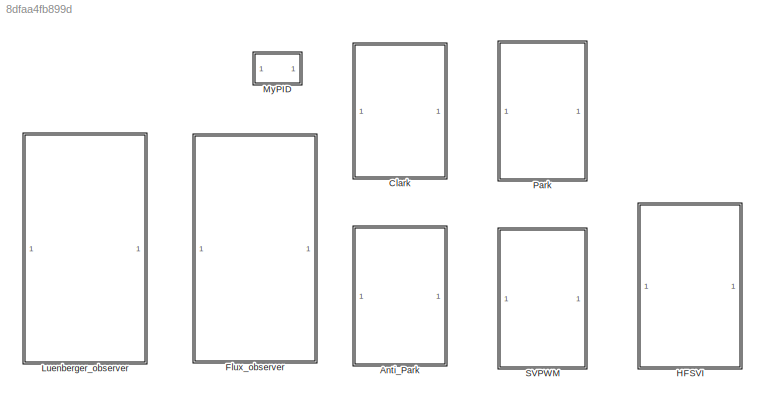
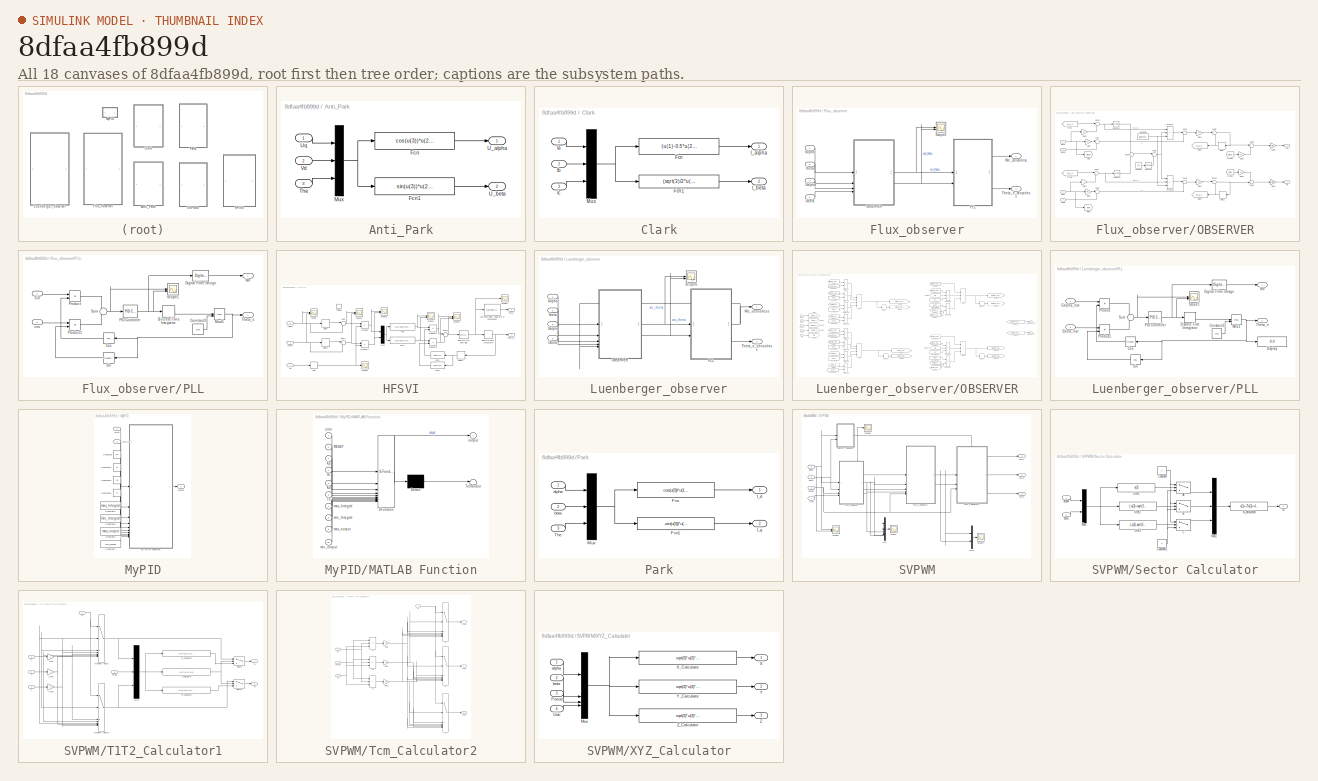
[diagram: thumbnail index - all 18 canvases of the model, root first then tree order]
MODEL slx_8dfaa4fb899d
KIND library
CONFIG AbsTol = auto
CONFIG EnableMultiTasking = off
CONFIG FixedStep = auto
CONFIG MaxStep = auto
CONFIG MinStep = auto
CONFIG RelTol = 1e-3
CONFIG SampleTimeConstraint = Unconstrained
CONFIG SolverName = VariableStepAuto
CONFIG StartTime = 0.0
CONFIG StopTime = 10.0
BLOCK [SubSystem] Anti_Park
BLOCK [Fcn] Anti_Park/Fcn
  Expr = cos(u(3))*u(2)-sin(u(3))*u(1)
BLOCK [Fcn] Anti_Park/Fcn1
  Expr = sin(u(3))*u(2)+cos(u(3))*u(1)
BLOCK [Mux] Anti_Park/Mux
  DisplayOption = bar
  Inputs = 3
BLOCK [Inport] Anti_Park/The
  Port = 3
BLOCK [Outport] Anti_Park/U_alpha
BLOCK [Outport] Anti_Park/U_beta
  Port = 2
BLOCK [Inport] Anti_Park/Uq
BLOCK [Inport] Anti_Park/Vd
  Port = 2
BLOCK [SubSystem] Clark
BLOCK [Fcn] Clark/Fcn
  Expr = (u(1)-0.5*u(2)-0.5*u(3))*2/3
BLOCK [Fcn] Clark/Fcn1
  Expr = (sqrt(3)/2*u(2)-sqrt(3)/2*u(3))*2/3
BLOCK [Outport] Clark/I_alpha
BLOCK [Outport] Clark/I_beta
  Port = 2
BLOCK [Inport] Clark/Ia
BLOCK [Inport] Clark/Ib
  Port = 2
BLOCK [Inport] Clark/Ic
  Port = 3
BLOCK [Mux] Clark/Mux
  DisplayOption = bar
  Inputs = 3
BLOCK [SubSystem] Flux_observer
  TreatAsAtomicUnit = on
BLOCK [Inport] Flux_observer/Ialpha
BLOCK [Inport] Flux_observer/Ibeta
  Port = 2
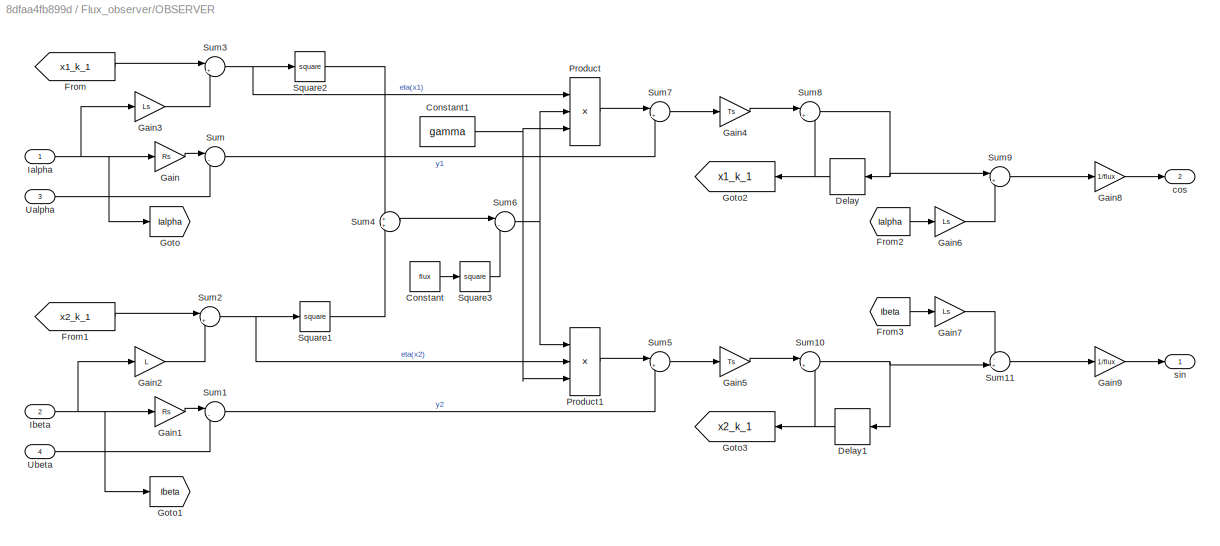
BLOCK [SubSystem] Flux_observer/OBSERVER
BLOCK [Constant] Flux_observer/OBSERVER/Constant
  Value = flux
BLOCK [Constant] Flux_observer/OBSERVER/Constant1
  Value = gamma
BLOCK [Delay] Flux_observer/OBSERVER/Delay
  DelayLength = 1
  InputPortMap = u0
  InputProcessing = Columns as channels (frame based)
BLOCK [Delay] Flux_observer/OBSERVER/Delay1
  DelayLength = 1
  InputPortMap = u0
  InputProcessing = Columns as channels (frame based)
BLOCK [From] Flux_observer/OBSERVER/From
  GotoTag = x1_k_1
BLOCK [From] Flux_observer/OBSERVER/From1
  GotoTag = x2_k_1
BLOCK [From] Flux_observer/OBSERVER/From2
  GotoTag = Ialpha
BLOCK [From] Flux_observer/OBSERVER/From3
  GotoTag = Ibeta
BLOCK [Gain] Flux_observer/OBSERVER/Gain
  Gain = Rs
BLOCK [Gain] Flux_observer/OBSERVER/Gain1
  Gain = Rs
BLOCK [Gain] Flux_observer/OBSERVER/Gain2
  Gain = L
BLOCK [Gain] Flux_observer/OBSERVER/Gain3
  Gain = Ls
BLOCK [Gain] Flux_observer/OBSERVER/Gain4
  Gain = Ts
BLOCK [Gain] Flux_observer/OBSERVER/Gain5
  Gain = Ts
BLOCK [Gain] Flux_observer/OBSERVER/Gain6
  Gain = Ls
BLOCK [Gain] Flux_observer/OBSERVER/Gain7
  Gain = Ls
BLOCK [Gain] Flux_observer/OBSERVER/Gain8
  Gain = 1/flux
BLOCK [Gain] Flux_observer/OBSERVER/Gain9
  Gain = 1/flux
BLOCK [Goto] Flux_observer/OBSERVER/Goto
  GotoTag = Ialpha
BLOCK [Goto] Flux_observer/OBSERVER/Goto1
  GotoTag = Ibeta
BLOCK [Goto] Flux_observer/OBSERVER/Goto2
  GotoTag = x1_k_1
BLOCK [Goto] Flux_observer/OBSERVER/Goto3
  GotoTag = x2_k_1
BLOCK [Inport] Flux_observer/OBSERVER/Ialpha
BLOCK [Inport] Flux_observer/OBSERVER/Ibeta
  Port = 2
BLOCK [Product] Flux_observer/OBSERVER/Product
  Inputs = 3
BLOCK [Product] Flux_observer/OBSERVER/Product1
  Inputs = 3
BLOCK [Math] Flux_observer/OBSERVER/Square1
  Operator = square
BLOCK [Math] Flux_observer/OBSERVER/Square2
  Operator = square
BLOCK [Math] Flux_observer/OBSERVER/Square3
  Operator = square
BLOCK [Sum] Flux_observer/OBSERVER/Sum
  Inputs = |-+
BLOCK [Sum] Flux_observer/OBSERVER/Sum1
  Inputs = |-+
BLOCK [Sum] Flux_observer/OBSERVER/Sum10
  Inputs = |++
BLOCK [Sum] Flux_observer/OBSERVER/Sum11
  Inputs = -+|
BLOCK [Sum] Flux_observer/OBSERVER/Sum2
  Inputs = |+-
BLOCK [Sum] Flux_observer/OBSERVER/Sum3
  Inputs = |+-
BLOCK [Sum] Flux_observer/OBSERVER/Sum4
BLOCK [Sum] Flux_observer/OBSERVER/Sum5
  Inputs = |++
BLOCK [Sum] Flux_observer/OBSERVER/Sum6
  Inputs = |-+
BLOCK [Sum] Flux_observer/OBSERVER/Sum7
  Inputs = |++
BLOCK [Sum] Flux_observer/OBSERVER/Sum8
  Inputs = |++
BLOCK [Sum] Flux_observer/OBSERVER/Sum9
  Inputs = |+-
BLOCK [Inport] Flux_observer/OBSERVER/Ualpha
  Port = 3
BLOCK [Inport] Flux_observer/OBSERVER/Ubeta
  Port = 4
BLOCK [Outport] Flux_observer/OBSERVER/cos
  Port = 2
BLOCK [Outport] Flux_observer/OBSERVER/sin
BLOCK [SubSystem] Flux_observer/PLL
BLOCK [Constant] Flux_observer/PLL/Constant3
  Value = 2*pi
BLOCK [Trigonometry] Flux_observer/PLL/Cos
  ApproximationMethod = Lookup
  Operator = cos
BLOCK [Reference] Flux_observer/PLL/Digital Filter Design  REF=dspfdesign/Digital
Filter Design
  SourceBlock = dspfdesign/Digital\nFilter Design
  SourceType = Digital Filter Design
  UserDataPersistent = on
BLOCK [DiscreteIntegrator] Flux_observer/PLL/Discrete-Time Integrator
  ICPrevOutput = DiscIntNeverNeededParam
  ICPrevScaledInput = DiscIntNeverNeededParam
  InitialConditionSetting = Auto
  SampleTime = -1
BLOCK [Math] Flux_observer/PLL/Mod1
  Operator = mod
BLOCK [Reference] Flux_observer/PLL/PID Controller  REF=slpidlib/PID Controller
  SourceBlock = slpidlib/PID Controller
  SourceType = PID 1dof
BLOCK [Product] Flux_observer/PLL/Product
BLOCK [Product] Flux_observer/PLL/Product1
BLOCK [Scope] Flux_observer/PLL/Scope1
  Floating = off
  NumInputPorts = 2
  ScopeSpecificationString = Simulink.scopes.TimeScopeBlockCfg('CurrentConfiguration', extmgr.ConfigurationSet(extmgr.Configuration('Core','General UI',true),extmgr.Configuration('Core','Source UI',true),extmgr.Configuration('Sources','WiredSimulink',true,'DataLoggingVariableName','ScopeData16'),extmgr.Configuration('Visuals','Time Domain',true,'SerializedDisplays',{struct('MinYLimReal','-0.12371','MaxYLimReal','0.7221','YLab...<+2292ch>
BLOCK [Trigonometry] Flux_observer/PLL/Sin
  ApproximationMethod = Lookup
BLOCK [Sum] Flux_observer/PLL/Sum
  Inputs = +-
BLOCK [Outport] Flux_observer/PLL/Theta_e
  Port = 2
BLOCK [Outport] Flux_observer/PLL/We
BLOCK [Inport] Flux_observer/PLL/cos
  Port = 2
BLOCK [Inport] Flux_observer/PLL/sin
BLOCK [Scope] Flux_observer/Scope6
  Floating = off
  NumInputPorts = 2
  ScopeSpecificationString = Simulink.scopes.TimeScopeBlockCfg('CurrentConfiguration', extmgr.ConfigurationSet(extmgr.Configuration('Core','General UI',true),extmgr.Configuration('Core','Source UI',true),extmgr.Configuration('Sources','WiredSimulink',true,'DataLoggingVariableName','ScopeData12'),extmgr.Configuration('Visuals','Time Domain',true,'SerializedDisplays',{struct('MinYLimReal','-1.19042','MaxYLimReal','1.08525','YLa...<+1566ch>
BLOCK [Outport] Flux_observer/Theta_e_sensorless
  Port = 2
BLOCK [Inport] Flux_observer/Ualpha
  Port = 3
BLOCK [Inport] Flux_observer/Ubeta
  Port = 4
BLOCK [Outport] Flux_observer/We_sensorless
BLOCK [SubSystem] HFSVI
  TreatAsAtomicUnit = on
BLOCK [Delay] HFSVI/Delay
  DelayLength = 1
  InitialCondition = 0
  InputPortMap = u0
BLOCK [Delay] HFSVI/Delay1
  DelayLength = 1
  InitialCondition = 0
  InputPortMap = u0
BLOCK [Delay] HFSVI/Delay2
  DelayLength = 1
  InitialCondition = 0
  InputPortMap = u0
  NameLocation = top
BLOCK [Reference] HFSVI/Discrete PID Controller  REF=slpidlib/PID Controller
  SourceBlock = slpidlib/PID Controller
  SourceType = PID 1dof
BLOCK [DiscreteIntegrator] HFSVI/Discrete-Time Integrator
  ICPrevOutput = DiscIntNeverNeededParam
  ICPrevScaledInput = DiscIntNeverNeededParam
  InitialConditionSetting = Auto
  SampleTime = -1
BLOCK [Fcn] HFSVI/Fcn
  Expr = u(1)/sqrt(u(1)^2+u(2)^2)
BLOCK [Fcn] HFSVI/Fcn1
  Expr = u(2)/sqrt(u(1)^2+u(2)^2)
BLOCK [Fcn] HFSVI/Fcn2
  Expr = sin(u(1))
  NameLocation = top
BLOCK [Fcn] HFSVI/Fcn3
  Expr = cos(u(1))
  NameLocation = top
BLOCK [Inport] HFSVI/Ialpha
  Port = 2
BLOCK [Inport] HFSVI/Ibeta
  Port = 3
BLOCK [Reference] HFSVI/Low-Pass Filter (Discrete or Continuous)  REF=eeGeneralControl/Low-Pass Filter
(Discrete or Continuous)
  SourceBlock = eeGeneralControl/Low-Pass Filter\n(Discrete or Continuous)
  SourceType = Low-Pass Filter (Discrete or Continuous)
BLOCK [Mux] HFSVI/Mux
  DisplayOption = bar
  Inputs = 2
BLOCK [Product] HFSVI/Product
BLOCK [Product] HFSVI/Product1
BLOCK [Product] HFSVI/Product2
BLOCK [Product] HFSVI/Product3
BLOCK [Scope] HFSVI/Scope
  Floating = off
  NumInputPorts = 2
  ScopeSpecificationString = Simulink.scopes.TimeScopeBlockCfg('CurrentConfiguration', extmgr.ConfigurationSet(extmgr.Configuration('Core','General UI',true),extmgr.Configuration('Core','Source UI',true),extmgr.Configuration('Sources','WiredSimulink',true,'DataLoggingVariableName','ScopeData1'),extmgr.Configuration('Visuals','Time Domain',true,'SerializedDisplays',{struct('MinYLimReal','-0.31124','MaxYLimReal','0.30332','YLab...<+1776ch>
BLOCK [Scope] HFSVI/Scope1
  Floating = off
  NumInputPorts = 2
  ScopeSpecificationString = Simulink.scopes.TimeScopeBlockCfg('CurrentConfiguration', extmgr.ConfigurationSet(extmgr.Configuration('Core','General UI',true),extmgr.Configuration('Core','Source UI',true),extmgr.Configuration('Sources','WiredSimulink',true,'DataLoggingVariableName','ScopeData3'),extmgr.Configuration('Visuals','Time Domain',true,'SerializedDisplays',{struct('MinYLimReal','-0.88992','MaxYLimReal','0.99374','YLab...<+1465ch>
BLOCK [Scope] HFSVI/Scope2
  Floating = off
  NumInputPorts = 2
  ScopeSpecificationString = Simulink.scopes.TimeScopeBlockCfg('CurrentConfiguration', extmgr.ConfigurationSet(extmgr.Configuration('Core','General UI',true),extmgr.Configuration('Core','Source UI',true),extmgr.Configuration('Sources','WiredSimulink',true,'DataLoggingVariableName','ScopeData4'),extmgr.Configuration('Visuals','Time Domain',true,'SerializedDisplays',{struct('MinYLimReal','-0.99404','MaxYLimReal','0.8926','YLabe...<+1788ch>
BLOCK [Scope] HFSVI/Scope3
  Floating = off
  NumInputPorts = 1
  ScopeSpecificationString = Simulink.scopes.TimeScopeBlockCfg('CurrentConfiguration', extmgr.ConfigurationSet(extmgr.Configuration('Core','General UI',true),extmgr.Configuration('Core','Source UI',true),extmgr.Configuration('Sources','WiredSimulink',true,'DataLoggingVariableName','ScopeData5'),extmgr.Configuration('Visuals','Time Domain',true,'SerializedDisplays',{struct('MinYLimReal','-1.25','MaxYLimReal','1.25','YLabelReal...<+1432ch>
BLOCK [Scope] HFSVI/Scope4
  Floating = off
  NumInputPorts = 2
  ScopeSpecificationString = Simulink.scopes.TimeScopeBlockCfg('CurrentConfiguration', extmgr.ConfigurationSet(extmgr.Configuration('Core','General UI',true),extmgr.Configuration('Core','Source UI',true),extmgr.Configuration('Sources','WiredSimulink',true,'DataLoggingVariableName','ScopeData6'),extmgr.Configuration('Visuals','Time Domain',true,'SerializedDisplays',{struct('MinYLimReal','-1.25','MaxYLimReal','1.25','YLabelReal...<+1447ch>
BLOCK [Scope] HFSVI/Scope5
  Floating = off
  NumInputPorts = 1
  ScopeSpecificationString = Simulink.scopes.TimeScopeBlockCfg('CurrentConfiguration', extmgr.ConfigurationSet(extmgr.Configuration('Core','General UI',true),extmgr.Configuration('Core','Source UI',true),extmgr.Configuration('Sources','WiredSimulink',true,'DataLoggingVariableName','ScopeData1'),extmgr.Configuration('Visuals','Time Domain',true,'SerializedDisplays',{struct('MinYLimReal','-248.78679','MaxYLimReal','623.09214','...<+1448ch>
BLOCK [Scope] HFSVI/Scope6
  Floating = off
  NumInputPorts = 3
  ScopeSpecificationString = Simulink.scopes.TimeScopeBlockCfg('CurrentConfiguration', extmgr.ConfigurationSet(extmgr.Configuration('Core','General UI',true),extmgr.Configuration('Core','Source UI',true),extmgr.Configuration('Sources','WiredSimulink',true,'DataLoggingVariableName','ScopeData2'),extmgr.Configuration('Visuals','Time Domain',true,'SerializedDisplays',{struct('MinYLimReal','-1.12483','MaxYLimReal','1.12483','YLab...<+1481ch>
BLOCK [Signum] HFSVI/Sign
BLOCK [Sum] HFSVI/Sum
  Inputs = |-+
BLOCK [Sum] HFSVI/Sum1
  Inputs = |-+
BLOCK [Sum] HFSVI/Sum2
  Inputs = +-
BLOCK [Outport] HFSVI/Theta_e
BLOCK [TriggerPort] HFSVI/Trigger
  StatesWhenEnabling = held
  TriggerType = either
  VariantControl = (inherit)
BLOCK [Inport] HFSVI/Uh
BLOCK [Outport] HFSVI/We_e
  Port = 2
BLOCK [SubSystem] Luenberger_observer
  TreatAsAtomicUnit = on
BLOCK [Inport] Luenberger_observer/Ialpha
BLOCK [Inport] Luenberger_observer/Ibeta
  Port = 2
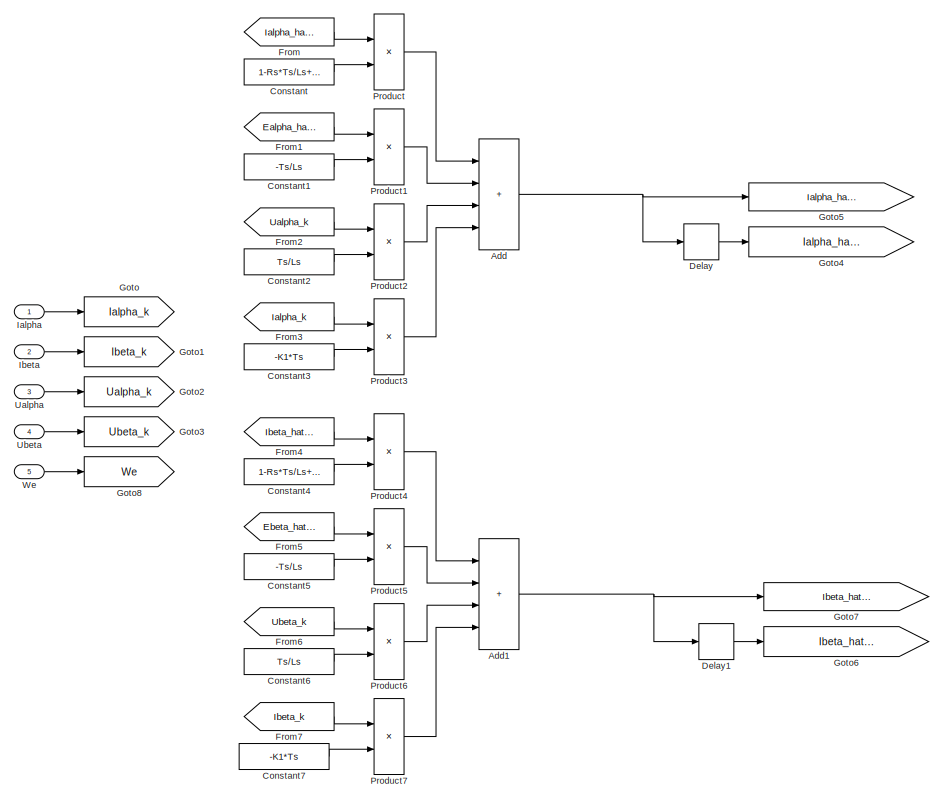
[diagram: Luenberger_observer/OBSERVER - part 1/2, left side, full height]
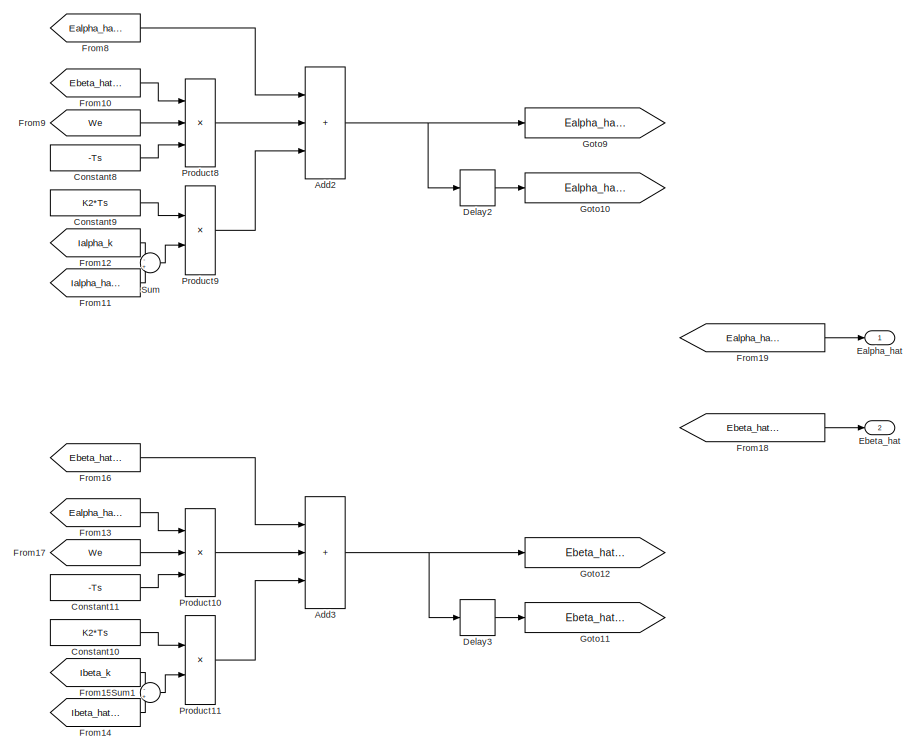
[diagram: Luenberger_observer/OBSERVER - part 2/2, right side, full height]
BLOCK [SubSystem] Luenberger_observer/OBSERVER
BLOCK [Sum] Luenberger_observer/OBSERVER/Add
  IconShape = rectangular
  Inputs = ++++
BLOCK [Sum] Luenberger_observer/OBSERVER/Add1
  IconShape = rectangular
  Inputs = ++++
BLOCK [Sum] Luenberger_observer/OBSERVER/Add2
  IconShape = rectangular
  Inputs = +++
BLOCK [Sum] Luenberger_observer/OBSERVER/Add3
  IconShape = rectangular
  Inputs = +++
BLOCK [Constant] Luenberger_observer/OBSERVER/Constant
  Value = 1-Rs*Ts/Ls+K1*Ts
BLOCK [Constant] Luenberger_observer/OBSERVER/Constant1
  Value = -Ts/Ls
BLOCK [Constant] Luenberger_observer/OBSERVER/Constant10
  Value = K2*Ts
BLOCK [Constant] Luenberger_observer/OBSERVER/Constant11
  Value = -Ts
BLOCK [Constant] Luenberger_observer/OBSERVER/Constant2
  Value = Ts/Ls
BLOCK [Constant] Luenberger_observer/OBSERVER/Constant3
  Value = -K1*Ts
BLOCK [Constant] Luenberger_observer/OBSERVER/Constant4
  Value = 1-Rs*Ts/Ls+K1*Ts
BLOCK [Constant] Luenberger_observer/OBSERVER/Constant5
  Value = -Ts/Ls
BLOCK [Constant] Luenberger_observer/OBSERVER/Constant6
  Value = Ts/Ls
BLOCK [Constant] Luenberger_observer/OBSERVER/Constant7
  Value = -K1*Ts
BLOCK [Constant] Luenberger_observer/OBSERVER/Constant8
  Value = -Ts
BLOCK [Constant] Luenberger_observer/OBSERVER/Constant9
  Value = K2*Ts
BLOCK [Delay] Luenberger_observer/OBSERVER/Delay
  DelayLength = 1
  InputPortMap = u0
  InputProcessing = Columns as channels (frame based)
BLOCK [Delay] Luenberger_observer/OBSERVER/Delay1
  DelayLength = 1
  InputPortMap = u0
  InputProcessing = Columns as channels (frame based)
BLOCK [Delay] Luenberger_observer/OBSERVER/Delay2
  DelayLength = 1
  InputPortMap = u0
  InputProcessing = Columns as channels (frame based)
BLOCK [Delay] Luenberger_observer/OBSERVER/Delay3
  DelayLength = 1
  InputPortMap = u0
  InputProcessing = Columns as channels (frame based)
BLOCK [Outport] Luenberger_observer/OBSERVER/Ealpha_hat
BLOCK [Outport] Luenberger_observer/OBSERVER/Ebeta_hat
  Port = 2
BLOCK [From] Luenberger_observer/OBSERVER/From
  GotoTag = Ialpha_hat_k
BLOCK [From] Luenberger_observer/OBSERVER/From1
  GotoTag = Ealpha_hat_k
BLOCK [From] Luenberger_observer/OBSERVER/From10
  GotoTag = Ebeta_hat_k
BLOCK [From] Luenberger_observer/OBSERVER/From11
  GotoTag = Ialpha_hat_k
BLOCK [From] Luenberger_observer/OBSERVER/From12
  GotoTag = Ialpha_k
BLOCK [From] Luenberger_observer/OBSERVER/From13
  GotoTag = Ealpha_hat_k
BLOCK [From] Luenberger_observer/OBSERVER/From14
  GotoTag = Ibeta_hat_k
BLOCK [From] Luenberger_observer/OBSERVER/From15
  GotoTag = Ibeta_k
BLOCK [From] Luenberger_observer/OBSERVER/From16
  GotoTag = Ebeta_hat_k
BLOCK [From] Luenberger_observer/OBSERVER/From17
  GotoTag = We
BLOCK [From] Luenberger_observer/OBSERVER/From18
  GotoTag = Ebeta_hat_k
BLOCK [From] Luenberger_observer/OBSERVER/From19
  GotoTag = Ealpha_hat_k
BLOCK [From] Luenberger_observer/OBSERVER/From2
  GotoTag = Ualpha_k
BLOCK [From] Luenberger_observer/OBSERVER/From3
  GotoTag = Ialpha_k
BLOCK [From] Luenberger_observer/OBSERVER/From4
  GotoTag = Ibeta_hat_k
BLOCK [From] Luenberger_observer/OBSERVER/From5
  GotoTag = Ebeta_hat_k
BLOCK [From] Luenberger_observer/OBSERVER/From6
  GotoTag = Ubeta_k
BLOCK [From] Luenberger_observer/OBSERVER/From7
  GotoTag = Ibeta_k
BLOCK [From] Luenberger_observer/OBSERVER/From8
  GotoTag = Ealpha_hat_k
BLOCK [From] Luenberger_observer/OBSERVER/From9
  GotoTag = We
BLOCK [Goto] Luenberger_observer/OBSERVER/Goto
  GotoTag = Ialpha_k
BLOCK [Goto] Luenberger_observer/OBSERVER/Goto1
  GotoTag = Ibeta_k
BLOCK [Goto] Luenberger_observer/OBSERVER/Goto10
  GotoTag = Ealpha_hat_k
BLOCK [Goto] Luenberger_observer/OBSERVER/Goto11
  GotoTag = Ebeta_hat_k
BLOCK [Goto] Luenberger_observer/OBSERVER/Goto12
  GotoTag = Ebeta_hat_k_add_1
BLOCK [Goto] Luenberger_observer/OBSERVER/Goto2
  GotoTag = Ualpha_k
BLOCK [Goto] Luenberger_observer/OBSERVER/Goto3
  GotoTag = Ubeta_k
BLOCK [Goto] Luenberger_observer/OBSERVER/Goto4
  GotoTag = Ialpha_hat_k
BLOCK [Goto] Luenberger_observer/OBSERVER/Goto5
  GotoTag = Ialpha_hat_k_add_1
BLOCK [Goto] Luenberger_observer/OBSERVER/Goto6
  GotoTag = Ibeta_hat_k
BLOCK [Goto] Luenberger_observer/OBSERVER/Goto7
  GotoTag = Ibeta_hat_k_add_1
BLOCK [Goto] Luenberger_observer/OBSERVER/Goto8
  GotoTag = We
BLOCK [Goto] Luenberger_observer/OBSERVER/Goto9
  GotoTag = Ealpha_hat_k_add_1
BLOCK [Inport] Luenberger_observer/OBSERVER/Ialpha
BLOCK [Inport] Luenberger_observer/OBSERVER/Ibeta
  Port = 2
BLOCK [Product] Luenberger_observer/OBSERVER/Product
BLOCK [Product] Luenberger_observer/OBSERVER/Product1
BLOCK [Product] Luenberger_observer/OBSERVER/Product10
  Inputs = 3
BLOCK [Product] Luenberger_observer/OBSERVER/Product11
BLOCK [Product] Luenberger_observer/OBSERVER/Product2
BLOCK [Product] Luenberger_observer/OBSERVER/Product3
BLOCK [Product] Luenberger_observer/OBSERVER/Product4
BLOCK [Product] Luenberger_observer/OBSERVER/Product5
BLOCK [Product] Luenberger_observer/OBSERVER/Product6
BLOCK [Product] Luenberger_observer/OBSERVER/Product7
BLOCK [Product] Luenberger_observer/OBSERVER/Product8
  Inputs = 3
BLOCK [Product] Luenberger_observer/OBSERVER/Product9
BLOCK [Sum] Luenberger_observer/OBSERVER/Sum
  Inputs = -+
BLOCK [Sum] Luenberger_observer/OBSERVER/Sum1
  Inputs = -+
BLOCK [Inport] Luenberger_observer/OBSERVER/Ualpha
  Port = 3
BLOCK [Inport] Luenberger_observer/OBSERVER/Ubeta
  Port = 4
BLOCK [Inport] Luenberger_observer/OBSERVER/We
  Port = 5
BLOCK [SubSystem] Luenberger_observer/PLL
BLOCK [Constant] Luenberger_observer/PLL/Constant3
  Value = 2*pi
BLOCK [Trigonometry] Luenberger_observer/PLL/Cos
  NumberOfIterations = 20
BLOCK [Reference] Luenberger_observer/PLL/Digital Filter Design  REF=dspfdesign/Digital
Filter Design
  SourceBlock = dspfdesign/Digital\nFilter Design
  SourceType = Digital Filter Design
  UserDataPersistent = on
BLOCK [DiscreteIntegrator] Luenberger_observer/PLL/Discrete-Time Integrator
  ICPrevOutput = DiscIntNeverNeededParam
  ICPrevScaledInput = DiscIntNeverNeededParam
  InitialConditionSetting = Auto
  SampleTime = -1
BLOCK [Display] Luenberger_observer/PLL/Display
  Decimation = 1
BLOCK [Inport] Luenberger_observer/PLL/Ealpha_hat
BLOCK [Inport] Luenberger_observer/PLL/Ebeta_hat
  Port = 2
BLOCK [Math] Luenberger_observer/PLL/Mod1
  Operator = mod
BLOCK [Reference] Luenberger_observer/PLL/PID Controller  REF=slpidlib/PID Controller
  SourceBlock = slpidlib/PID Controller
  SourceType = PID 1dof
BLOCK [Product] Luenberger_observer/PLL/Product
BLOCK [Product] Luenberger_observer/PLL/Product1
BLOCK [Scope] Luenberger_observer/PLL/Scope1
  Floating = off
  NumInputPorts = 2
  ScopeSpecificationString = Simulink.scopes.TimeScopeBlockCfg('CurrentConfiguration', extmgr.ConfigurationSet(extmgr.Configuration('Core','General UI',true),extmgr.Configuration('Core','Source UI',true),extmgr.Configuration('Sources','WiredSimulink',true,'DataLoggingVariableName','ScopeData16'),extmgr.Configuration('Visuals','Time Domain',true,'SerializedDisplays',{struct('MinYLimReal','-0.12371','MaxYLimReal','0.7221','YLab...<+2292ch>
BLOCK [Trigonometry] Luenberger_observer/PLL/Sin
  NumberOfIterations = 20
  Operator = cos
BLOCK [Sum] Luenberger_observer/PLL/Sum
  Inputs = -+
BLOCK [Outport] Luenberger_observer/PLL/Theta_e
  Port = 2
BLOCK [Outport] Luenberger_observer/PLL/We
BLOCK [Scope] Luenberger_observer/Scope6
  Floating = off
  NumInputPorts = 2
  ScopeSpecificationString = Simulink.scopes.TimeScopeBlockCfg('CurrentConfiguration', extmgr.ConfigurationSet(extmgr.Configuration('Core','General UI',true),extmgr.Configuration('Core','Source UI',true),extmgr.Configuration('Sources','WiredSimulink',true,'DataLoggingVariableName','ScopeData12'),extmgr.Configuration('Visuals','Time Domain',true,'SerializedDisplays',{struct('MinYLimReal','-1961397469972624102486847672892555599...<+3498ch>
BLOCK [Outport] Luenberger_observer/Theta_e_sensorless
  Port = 2
BLOCK [Inport] Luenberger_observer/Ualpha
  Port = 3
BLOCK [Inport] Luenberger_observer/Ubeta
  Port = 4
BLOCK [Outport] Luenberger_observer/We_sensorless
BLOCK [SubSystem] MyPID
BLOCK [Constant] MyPID/Constant
  Value = Kp
BLOCK [Constant] MyPID/Constant1
  Value = Ki
BLOCK [Constant] MyPID/Constant2
  Value = Kd
BLOCK [Constant] MyPID/Constant3
  Value = Ts
BLOCK [Constant] MyPID/Constant4
  Value = max_Integral
BLOCK [Constant] MyPID/Constant5
  Value = min_Integral
BLOCK [Constant] MyPID/Constant6
  Value = max_output
BLOCK [Constant] MyPID/Constant7
  Value = min_output
BLOCK [SubSystem] MyPID/MATLAB Function
  ErrorFcn = Stateflow.Translate.translate
  PermitHierarchicalResolution = ExplicitOnly
  SFBlockType = MATLAB Function
  TreatAsAtomicUnit = on
BLOCK [Demux] MyPID/MATLAB Function/ Demux 
  Outputs = 1
BLOCK [S-Function] MyPID/MATLAB Function/ SFunction 
  EnableBusSupport = on
  FunctionName = sf_sfun
  PortCounts = [10 2]
  SFcnIsStateOwnerBlock = off
  SFunctionDeploymentMode = off
  Tag = Stateflow S-Function 2
BLOCK [Terminator] MyPID/MATLAB Function/ Terminator 
BLOCK [Inport] MyPID/MATLAB Function/Kd
  Port = 5
BLOCK [Inport] MyPID/MATLAB Function/Ki
  Port = 4
BLOCK [Inport] MyPID/MATLAB Function/Kp
  Port = 3
BLOCK [Inport] MyPID/MATLAB Function/RESET
  Port = 2
BLOCK [Inport] MyPID/MATLAB Function/Ts
  Port = 6
BLOCK [Inport] MyPID/MATLAB Function/error
BLOCK [Inport] MyPID/MATLAB Function/max_Integral
  Port = 7
BLOCK [Inport] MyPID/MATLAB Function/max_output
  Port = 9
BLOCK [Inport] MyPID/MATLAB Function/min_Integral
  Port = 8
BLOCK [Inport] MyPID/MATLAB Function/min_output
  Port = 10
BLOCK [Outport] MyPID/MATLAB Function/output
BLOCK [Inport] MyPID/RESET
  Port = 2
BLOCK [Inport] MyPID/error
BLOCK [Outport] MyPID/output
BLOCK [SubSystem] Park
BLOCK [Fcn] Park/Fcn
  Expr = cos(u(3))*u(1)+sin(u(3))*u(2)
BLOCK [Fcn] Park/Fcn1
  Expr = -sin(u(3))*u(1)+cos(u(3))*u(2)
BLOCK [Outport] Park/I_d
BLOCK [Outport] Park/I_q
  Port = 2
BLOCK [Mux] Park/Mux
  DisplayOption = bar
  Inputs = 3
BLOCK [Inport] Park/The
  Port = 3
BLOCK [Inport] Park/alpha
BLOCK [Inport] Park/beta
  Port = 2
BLOCK [SubSystem] SVPWM
BLOCK [Mux] SVPWM/Mux
  DisplayOption = bar
  Inputs = 3
BLOCK [Mux] SVPWM/Mux1
  DisplayOption = bar
  Inputs = 2
BLOCK [Inport] SVPWM/Period
  Port = 3
BLOCK [Scope] SVPWM/Scope1
  Floating = off
  NumInputPorts = 1
  ScopeSpecificationString = Simulink.scopes.TimeScopeBlockCfg('CurrentConfiguration', extmgr.ConfigurationSet(extmgr.Configuration('Core','General UI',true),extmgr.Configuration('Core','Source UI',true),extmgr.Configuration('Sources','WiredSimulink',true,'DataLoggingVariableName','ScopeData1'),extmgr.Configuration('Visuals','Time Domain',true,'SerializedDisplays',{struct('MinYLimReal','-4305.10084','MaxYLimReal','17531.82862...<+1586ch>
BLOCK [Scope] SVPWM/Scope2
  Floating = off
  NumInputPorts = 1
  ScopeSpecificationString = Simulink.scopes.TimeScopeBlockCfg('CurrentConfiguration', extmgr.ConfigurationSet(extmgr.Configuration('Core','General UI',true),extmgr.Configuration('Core','Source UI',true),extmgr.Configuration('Sources','WiredSimulink',true),extmgr.Configuration('Visuals','Time Domain',true,'SerializedDisplays',{struct('MinYLimReal','0.375','MaxYLimReal','6.625','YLabelReal','','MinYLimMag','0.375','MaxYLimMag'...<+1348ch>
BLOCK [Scope] SVPWM/Scope3
  Floating = off
  NumInputPorts = 1
  ScopeSpecificationString = Simulink.scopes.TimeScopeBlockCfg('CurrentConfiguration', extmgr.ConfigurationSet(extmgr.Configuration('Core','General UI',true),extmgr.Configuration('Core','Source UI',true),extmgr.Configuration('Sources','WiredSimulink',true,'DataLoggingVariableName','ScopeData2'),extmgr.Configuration('Visuals','Time Domain',true,'SerializedDisplays',{struct('MinYLimReal','-632.62157','MaxYLimReal','6445.15038',...<+1595ch>
BLOCK [Scope] SVPWM/Scope4
  Floating = off
  NumInputPorts = 2
  ScopeSpecificationString = Simulink.scopes.TimeScopeBlockCfg('CurrentConfiguration', extmgr.ConfigurationSet(extmgr.Configuration('Core','General UI',true),extmgr.Configuration('Core','Source UI',true),extmgr.Configuration('Sources','WiredSimulink',true,'DataLoggingVariableName','ScopeData5'),extmgr.Configuration('Visuals','Time Domain',true,'SerializedDisplays',{struct('MinYLimReal','-123.23506','MaxYLimReal','147.88978','...<+1684ch>
BLOCK [SubSystem] SVPWM/Sector Calculator
BLOCK [Switch] SVPWM/Sector Calculator/A
  Criteria = u2 > Threshold
  InputSameDT = off
  SaturateOnIntegerOverflow = off
BLOCK [Switch] SVPWM/Sector Calculator/B
  Criteria = u2 > Threshold
  InputSameDT = off
  SaturateOnIntegerOverflow = off
BLOCK [Switch] SVPWM/Sector Calculator/C
  Criteria = u2 > Threshold
  InputSameDT = off
  SaturateOnIntegerOverflow = off
BLOCK [Constant] SVPWM/Sector Calculator/Constant
BLOCK [Constant] SVPWM/Sector Calculator/Constant1
  Value = 0
BLOCK [Mux] SVPWM/Sector Calculator/Mux
  DisplayOption = bar
  Inputs = 2
BLOCK [Mux] SVPWM/Sector Calculator/Mux1
  DisplayOption = bar
  Inputs = 3
BLOCK [Outport] SVPWM/Sector Calculator/N
BLOCK [Fcn] SVPWM/Sector Calculator/N_calculator
  Expr = u(1)+2*u(2)+4*u(3)
BLOCK [Fcn] SVPWM/Sector Calculator/Uref1
  Expr = u(2)
BLOCK [Fcn] SVPWM/Sector Calculator/Uref2
  Expr = (-u(2)+sqrt(3)*u(1))/2
BLOCK [Fcn] SVPWM/Sector Calculator/Uref3
  Expr = (-u(2)-sqrt(3)*u(1))/2
BLOCK [Inport] SVPWM/Sector Calculator/alpha
BLOCK [Inport] SVPWM/Sector Calculator/beta
  Port = 2
BLOCK [SubSystem] SVPWM/T1T2_Calculator1
BLOCK [Gain] SVPWM/T1T2_Calculator1/Gain
  Gain = -1
BLOCK [Gain] SVPWM/T1T2_Calculator1/Gain1
  Gain = -1
BLOCK [Gain] SVPWM/T1T2_Calculator1/Gain2
  Gain = -1
BLOCK [MultiPortSwitch] SVPWM/T1T2_Calculator1/Multiport Switch
  InputSameDT = off
  Inputs = 6
  SaturateOnIntegerOverflow = off
BLOCK [MultiPortSwitch] SVPWM/T1T2_Calculator1/Multiport Switch1
  InputSameDT = off
  Inputs = 6
  SaturateOnIntegerOverflow = off
BLOCK [Mux] SVPWM/T1T2_Calculator1/Mux
  DisplayOption = bar
  Inputs = 3
BLOCK [Inport] SVPWM/T1T2_Calculator1/N
BLOCK [Inport] SVPWM/T1T2_Calculator1/Period
  Port = 5
BLOCK [Switch] SVPWM/T1T2_Calculator1/Switch
  Criteria = u2 > Threshold
  InputSameDT = off
  SaturateOnIntegerOverflow = off
BLOCK [Switch] SVPWM/T1T2_Calculator1/Switch1
  Criteria = u2 > Threshold
  InputSameDT = off
  SaturateOnIntegerOverflow = off
BLOCK [Outport] SVPWM/T1T2_Calculator1/T1
BLOCK [Fcn] SVPWM/T1T2_Calculator1/T1_Calculator
  Expr = u(1)*u(2)/(u(1)+u(3))
BLOCK [Outport] SVPWM/T1T2_Calculator1/T2
  Port = 2
BLOCK [Fcn] SVPWM/T1T2_Calculator1/T2_Calculator
  Expr = u(3)*u(2)/(u(1)+u(3))
BLOCK [Fcn] SVPWM/T1T2_Calculator1/T_Calculator
  Expr = u(2)-u(1)-u(3)
BLOCK [Inport] SVPWM/T1T2_Calculator1/X
  Port = 2
BLOCK [Inport] SVPWM/T1T2_Calculator1/Y
  Port = 3
BLOCK [Inport] SVPWM/T1T2_Calculator1/Z
  Port = 4
BLOCK [Outport] SVPWM/Tcm1
BLOCK [Outport] SVPWM/Tcm2
  Port = 2
BLOCK [Outport] SVPWM/Tcm3
  Port = 3
BLOCK [SubSystem] SVPWM/Tcm_Calculator2
  PortSchema = {"entries":[{"content":{"sides":[{"content":{"connectorIds":["In1","In2","In3"]},"type":"ConnectorPlacement.EquallySpacedRectSide","uuid":"6148b169-7250-44a2-b567-24c78ff320ed"},{"content":{"connectorIds":["Out1","Out2","Out3"],"side":"RIGHT"},"type":"ConnectorPlacement.EquallySpacedRectSide","uuid":"6efb5841-0c91-46f1-a519-7a6c3f211abe"},{"content":{"connectorIds":["In4"],"side":"TOP"},"type":"Co...<+271ch>
BLOCK [MultiPortSwitch] SVPWM/Tcm_Calculator2/1
  InputSameDT = off
  Inputs = 6
  SaturateOnIntegerOverflow = off
BLOCK [MultiPortSwitch] SVPWM/Tcm_Calculator2/2
  InputSameDT = off
  Inputs = 6
  SaturateOnIntegerOverflow = off
BLOCK [MultiPortSwitch] SVPWM/Tcm_Calculator2/3
  InputSameDT = off
  Inputs = 6
  SaturateOnIntegerOverflow = off
BLOCK [Gain] SVPWM/Tcm_Calculator2/Gain
  Gain = 1/4
BLOCK [Gain] SVPWM/Tcm_Calculator2/Gain1
  Gain = 1/4
BLOCK [Gain] SVPWM/Tcm_Calculator2/Gain2
  Gain = 1/4
BLOCK [Inport] SVPWM/Tcm_Calculator2/N
  Port = 4
BLOCK [Inport] SVPWM/Tcm_Calculator2/Period
  Port = 3
BLOCK [Inport] SVPWM/Tcm_Calculator2/T1
BLOCK [Inport] SVPWM/Tcm_Calculator2/T2
  Port = 2
BLOCK [Sum] SVPWM/Tcm_Calculator2/Ta
  IconShape = rectangular
  Inputs = +--
BLOCK [Sum] SVPWM/Tcm_Calculator2/Tb
  IconShape = rectangular
  Inputs = ++-
BLOCK [Sum] SVPWM/Tcm_Calculator2/Tc
  IconShape = rectangular
  Inputs = +++
BLOCK [Outport] SVPWM/Tcm_Calculator2/Tcm1
BLOCK [Outport] SVPWM/Tcm_Calculator2/Tcm2
  Port = 2
BLOCK [Outport] SVPWM/Tcm_Calculator2/Tcm3
  Port = 3
BLOCK [Inport] SVPWM/Udc
  Port = 4
BLOCK [SubSystem] SVPWM/XYZ_Calculator
BLOCK [Mux] SVPWM/XYZ_Calculator/Mux
  DisplayOption = bar
BLOCK [Inport] SVPWM/XYZ_Calculator/Period
  Port = 3
BLOCK [Inport] SVPWM/XYZ_Calculator/Udc
  Port = 4
BLOCK [Outport] SVPWM/XYZ_Calculator/X
BLOCK [Fcn] SVPWM/XYZ_Calculator/X_Calculator
  Expr = sqrt(3)*u(2)*u(3)/u(4)
BLOCK [Outport] SVPWM/XYZ_Calculator/Y
  Port = 2
BLOCK [Fcn] SVPWM/XYZ_Calculator/Y_Calculator
  Expr = sqrt(3)*u(3)*(sqrt(3)/2*u(1)+0.5*u(2))/u(4)
BLOCK [Outport] SVPWM/XYZ_Calculator/Z
  Port = 3
BLOCK [Fcn] SVPWM/XYZ_Calculator/Z_Calculator
  Expr = sqrt(3)*u(3)*(-sqrt(3)/2*u(1)+0.5*u(2))/u(4)
BLOCK [Inport] SVPWM/XYZ_Calculator/alpha
BLOCK [Inport] SVPWM/XYZ_Calculator/beta
  Port = 2
BLOCK [Inport] SVPWM/alpha
BLOCK [Inport] SVPWM/beta
  Port = 2
LINE Anti_Park/Fcn1:1 -> Anti_Park/U_beta:1
LINE Anti_Park/Fcn:1 -> Anti_Park/U_alpha:1
NET Anti_Park/Mux:1 -> Anti_Park/Fcn1:1, Anti_Park/Fcn:1
LINE Anti_Park/The:1 -> Anti_Park/Mux:3
LINE Anti_Park/Uq:1 -> Anti_Park/Mux:1
LINE Anti_Park/Vd:1 -> Anti_Park/Mux:2
LINE Clark/Fcn1:1 -> Clark/I_beta:1
LINE Clark/Fcn:1 -> Clark/I_alpha:1
LINE Clark/Ia:1 -> Clark/Mux:1
LINE Clark/Ib:1 -> Clark/Mux:2
LINE Clark/Ic:1 -> Clark/Mux:3
NET Clark/Mux:1 -> Clark/Fcn1:1, Clark/Fcn:1
LINE Flux_observer/Ialpha:1 -> Flux_observer/OBSERVER:1
LINE Flux_observer/Ibeta:1 -> Flux_observer/OBSERVER:2
NET Flux_observer/OBSERVER/Constant1:1 -> Flux_observer/OBSERVER/Product1:3, Flux_observer/OBSERVER/Product:3
LINE Flux_observer/OBSERVER/Constant:1 -> Flux_observer/OBSERVER/Square3:1
NET Flux_observer/OBSERVER/Delay1:1 -> Flux_observer/OBSERVER/Goto3:1, Flux_observer/OBSERVER/Sum10:2
NET Flux_observer/OBSERVER/Delay:1 -> Flux_observer/OBSERVER/Goto2:1, Flux_observer/OBSERVER/Sum8:2
LINE Flux_observer/OBSERVER/From1:1 -> Flux_observer/OBSERVER/Sum2:1
LINE Flux_observer/OBSERVER/From2:1 -> Flux_observer/OBSERVER/Gain6:1
LINE Flux_observer/OBSERVER/From3:1 -> Flux_observer/OBSERVER/Gain7:1
LINE Flux_observer/OBSERVER/From:1 -> Flux_observer/OBSERVER/Sum3:1
LINE Flux_observer/OBSERVER/Gain1:1 -> Flux_observer/OBSERVER/Sum1:1
LINE Flux_observer/OBSERVER/Gain2:1 -> Flux_observer/OBSERVER/Sum2:2
LINE Flux_observer/OBSERVER/Gain3:1 -> Flux_observer/OBSERVER/Sum3:2
LINE Flux_observer/OBSERVER/Gain4:1 -> Flux_observer/OBSERVER/Sum8:1
LINE Flux_observer/OBSERVER/Gain5:1 -> Flux_observer/OBSERVER/Sum10:1
LINE Flux_observer/OBSERVER/Gain6:1 -> Flux_observer/OBSERVER/Sum9:2
LINE Flux_observer/OBSERVER/Gain7:1 -> Flux_observer/OBSERVER/Sum11:1
LINE Flux_observer/OBSERVER/Gain8:1 -> Flux_observer/OBSERVER/cos:1
LINE Flux_observer/OBSERVER/Gain9:1 -> Flux_observer/OBSERVER/sin:1
LINE Flux_observer/OBSERVER/Gain:1 -> Flux_observer/OBSERVER/Sum:1
NET Flux_observer/OBSERVER/Ialpha:1 -> Flux_observer/OBSERVER/Gain3:1, Flux_observer/OBSERVER/Gain:1, Flux_observer/OBSERVER/Goto:1
NET Flux_observer/OBSERVER/Ibeta:1 -> Flux_observer/OBSERVER/Gain1:1, Flux_observer/OBSERVER/Gain2:1, Flux_observer/OBSERVER/Goto1:1
LINE Flux_observer/OBSERVER/Product1:1 -> Flux_observer/OBSERVER/Sum5:1
LINE Flux_observer/OBSERVER/Product:1 -> Flux_observer/OBSERVER/Sum7:1
LINE Flux_observer/OBSERVER/Square1:1 -> Flux_observer/OBSERVER/Sum4:2
LINE Flux_observer/OBSERVER/Square2:1 -> Flux_observer/OBSERVER/Sum4:1
LINE Flux_observer/OBSERVER/Square3:1 -> Flux_observer/OBSERVER/Sum6:2
NET Flux_observer/OBSERVER/Sum10:1 -> Flux_observer/OBSERVER/Delay1:1, Flux_observer/OBSERVER/Sum11:2
LINE Flux_observer/OBSERVER/Sum11:1 -> Flux_observer/OBSERVER/Gain9:1
LINE Flux_observer/OBSERVER/Sum1:1 -> Flux_observer/OBSERVER/Sum5:2
NET Flux_observer/OBSERVER/Sum2:1 -> Flux_observer/OBSERVER/Product1:2, Flux_observer/OBSERVER/Square1:1
NET Flux_observer/OBSERVER/Sum3:1 -> Flux_observer/OBSERVER/Product:1, Flux_observer/OBSERVER/Square2:1
LINE Flux_observer/OBSERVER/Sum4:1 -> Flux_observer/OBSERVER/Sum6:1
LINE Flux_observer/OBSERVER/Sum5:1 -> Flux_observer/OBSERVER/Gain5:1
NET Flux_observer/OBSERVER/Sum6:1 -> Flux_observer/OBSERVER/Product1:1, Flux_observer/OBSERVER/Product:2
LINE Flux_observer/OBSERVER/Sum7:1 -> Flux_observer/OBSERVER/Gain4:1
NET Flux_observer/OBSERVER/Sum8:1 -> Flux_observer/OBSERVER/Delay:1, Flux_observer/OBSERVER/Sum9:1
LINE Flux_observer/OBSERVER/Sum9:1 -> Flux_observer/OBSERVER/Gain8:1
LINE Flux_observer/OBSERVER/Sum:1 -> Flux_observer/OBSERVER/Sum7:2
LINE Flux_observer/OBSERVER/Ualpha:1 -> Flux_observer/OBSERVER/Sum:2
LINE Flux_observer/OBSERVER/Ubeta:1 -> Flux_observer/OBSERVER/Sum1:2
NET Flux_observer/OBSERVER:1 -> Flux_observer/PLL:1, Flux_observer/Scope6:1
NET Flux_observer/OBSERVER:2 -> Flux_observer/PLL:2, Flux_observer/Scope6:2
LINE Flux_observer/PLL/Constant3:1 -> Flux_observer/PLL/Mod1:2
LINE Flux_observer/PLL/Cos:1 -> Flux_observer/PLL/Product:2
LINE Flux_observer/PLL/Digital Filter Design:1 -> Flux_observer/PLL/We:1
LINE Flux_observer/PLL/Discrete-Time Integrator:1 -> Flux_observer/PLL/Mod1:1
NET Flux_observer/PLL/Mod1:1 -> Flux_observer/PLL/Cos:1, Flux_observer/PLL/Sin:1, Flux_observer/PLL/Theta_e:1
NET Flux_observer/PLL/PID Controller:1 -> Flux_observer/PLL/Digital Filter Design:1, Flux_observer/PLL/Discrete-Time Integrator:1, Flux_observer/PLL/Scope1:2
LINE Flux_observer/PLL/Product1:1 -> Flux_observer/PLL/Sum:2
LINE Flux_observer/PLL/Product:1 -> Flux_observer/PLL/Sum:1
LINE Flux_observer/PLL/Sin:1 -> Flux_observer/PLL/Product1:2
NET Flux_observer/PLL/Sum:1 -> Flux_observer/PLL/PID Controller:1, Flux_observer/PLL/Scope1:1
LINE Flux_observer/PLL/cos:1 -> Flux_observer/PLL/Product1:1
LINE Flux_observer/PLL/sin:1 -> Flux_observer/PLL/Product:1
LINE Flux_observer/PLL:1 -> Flux_observer/We_sensorless:1
LINE Flux_observer/PLL:2 -> Flux_observer/Theta_e_sensorless:1
LINE Flux_observer/Ualpha:1 -> Flux_observer/OBSERVER:3
LINE Flux_observer/Ubeta:1 -> Flux_observer/OBSERVER:4
LINE HFSVI/Delay1:1 -> HFSVI/Sum1:1
NET HFSVI/Delay2:1 -> HFSVI/Fcn2:1, HFSVI/Fcn3:1
LINE HFSVI/Delay:1 -> HFSVI/Sum:1
NET HFSVI/Discrete PID Controller:1 -> HFSVI/Discrete-Time Integrator:1, HFSVI/Low-Pass Filter (Discrete or Continuous):1, HFSVI/Scope5:1
NET HFSVI/Discrete-Time Integrator:1 -> HFSVI/Delay2:1, HFSVI/Theta_e:1
NET HFSVI/Fcn1:1 -> HFSVI/Product3:1, HFSVI/Scope4:2
LINE HFSVI/Fcn2:1 -> HFSVI/Product2:2
LINE HFSVI/Fcn3:1 -> HFSVI/Product3:2
NET HFSVI/Fcn:1 -> HFSVI/Product2:1, HFSVI/Scope4:1
NET HFSVI/Ialpha:1 -> HFSVI/Delay:1, HFSVI/Scope:1, HFSVI/Sum:2
NET HFSVI/Ibeta:1 -> HFSVI/Delay1:1, HFSVI/Scope:2, HFSVI/Sum1:2
LINE HFSVI/Low-Pass Filter (Discrete or Continuous):1 -> HFSVI/We_e:1
NET HFSVI/Mux:1 -> HFSVI/Fcn1:1, HFSVI/Fcn:1
NET HFSVI/Product1:1 -> HFSVI/Mux:2, HFSVI/Scope2:2
NET HFSVI/Product2:1 -> HFSVI/Scope6:1, HFSVI/Sum2:1
NET HFSVI/Product3:1 -> HFSVI/Scope6:3, HFSVI/Sum2:2
NET HFSVI/Product:1 -> HFSVI/Mux:1, HFSVI/Scope2:1
NET HFSVI/Sign:1 -> HFSVI/Product1:2, HFSVI/Product:2, HFSVI/Scope3:1
NET HFSVI/Sum1:1 -> HFSVI/Product1:1, HFSVI/Scope1:2
NET HFSVI/Sum2:1 -> HFSVI/Discrete PID Controller:1, HFSVI/Scope6:2
NET HFSVI/Sum:1 -> HFSVI/Product:1, HFSVI/Scope1:1
LINE HFSVI/Uh:1 -> HFSVI/Sign:1
LINE Luenberger_observer/Ialpha:1 -> Luenberger_observer/OBSERVER:1
LINE Luenberger_observer/Ibeta:1 -> Luenberger_observer/OBSERVER:2
NET Luenberger_observer/OBSERVER/Add1:1 -> Luenberger_observer/OBSERVER/Delay1:1, Luenberger_observer/OBSERVER/Goto7:1
NET Luenberger_observer/OBSERVER/Add2:1 -> Luenberger_observer/OBSERVER/Delay2:1, Luenberger_observer/OBSERVER/Goto9:1
NET Luenberger_observer/OBSERVER/Add3:1 -> Luenberger_observer/OBSERVER/Delay3:1, Luenberger_observer/OBSERVER/Goto12:1
NET Luenberger_observer/OBSERVER/Add:1 -> Luenberger_observer/OBSERVER/Delay:1, Luenberger_observer/OBSERVER/Goto5:1
LINE Luenberger_observer/OBSERVER/Constant10:1 -> Luenberger_observer/OBSERVER/Product11:1
LINE Luenberger_observer/OBSERVER/Constant11:1 -> Luenberger_observer/OBSERVER/Product10:3
LINE Luenberger_observer/OBSERVER/Constant1:1 -> Luenberger_observer/OBSERVER/Product1:2
LINE Luenberger_observer/OBSERVER/Constant2:1 -> Luenberger_observer/OBSERVER/Product2:2
LINE Luenberger_observer/OBSERVER/Constant3:1 -> Luenberger_observer/OBSERVER/Product3:2
LINE Luenberger_observer/OBSERVER/Constant4:1 -> Luenberger_observer/OBSERVER/Product4:2
LINE Luenberger_observer/OBSERVER/Constant5:1 -> Luenberger_observer/OBSERVER/Product5:2
LINE Luenberger_observer/OBSERVER/Constant6:1 -> Luenberger_observer/OBSERVER/Product6:2
LINE Luenberger_observer/OBSERVER/Constant7:1 -> Luenberger_observer/OBSERVER/Product7:2
LINE Luenberger_observer/OBSERVER/Constant8:1 -> Luenberger_observer/OBSERVER/Product8:3
LINE Luenberger_observer/OBSERVER/Constant9:1 -> Luenberger_observer/OBSERVER/Product9:1
LINE Luenberger_observer/OBSERVER/Constant:1 -> Luenberger_observer/OBSERVER/Product:2
LINE Luenberger_observer/OBSERVER/Delay1:1 -> Luenberger_observer/OBSERVER/Goto6:1
LINE Luenberger_observer/OBSERVER/Delay2:1 -> Luenberger_observer/OBSERVER/Goto10:1
LINE Luenberger_observer/OBSERVER/Delay3:1 -> Luenberger_observer/OBSERVER/Goto11:1
LINE Luenberger_observer/OBSERVER/Delay:1 -> Luenberger_observer/OBSERVER/Goto4:1
LINE Luenberger_observer/OBSERVER/From10:1 -> Luenberger_observer/OBSERVER/Product8:1
LINE Luenberger_observer/OBSERVER/From11:1 -> Luenberger_observer/OBSERVER/Sum:2
LINE Luenberger_observer/OBSERVER/From12:1 -> Luenberger_observer/OBSERVER/Sum:1
LINE Luenberger_observer/OBSERVER/From13:1 -> Luenberger_observer/OBSERVER/Product10:1
LINE Luenberger_observer/OBSERVER/From14:1 -> Luenberger_observer/OBSERVER/Sum1:2
LINE Luenberger_observer/OBSERVER/From15:1 -> Luenberger_observer/OBSERVER/Sum1:1
LINE Luenberger_observer/OBSERVER/From16:1 -> Luenberger_observer/OBSERVER/Add3:1
LINE Luenberger_observer/OBSERVER/From17:1 -> Luenberger_observer/OBSERVER/Product10:2
LINE Luenberger_observer/OBSERVER/From18:1 -> Luenberger_observer/OBSERVER/Ebeta_hat:1
LINE Luenberger_observer/OBSERVER/From19:1 -> Luenberger_observer/OBSERVER/Ealpha_hat:1
LINE Luenberger_observer/OBSERVER/From1:1 -> Luenberger_observer/OBSERVER/Product1:1
LINE Luenberger_observer/OBSERVER/From2:1 -> Luenberger_observer/OBSERVER/Product2:1
LINE Luenberger_observer/OBSERVER/From3:1 -> Luenberger_observer/OBSERVER/Product3:1
LINE Luenberger_observer/OBSERVER/From4:1 -> Luenberger_observer/OBSERVER/Product4:1
LINE Luenberger_observer/OBSERVER/From5:1 -> Luenberger_observer/OBSERVER/Product5:1
LINE Luenberger_observer/OBSERVER/From6:1 -> Luenberger_observer/OBSERVER/Product6:1
LINE Luenberger_observer/OBSERVER/From7:1 -> Luenberger_observer/OBSERVER/Product7:1
LINE Luenberger_observer/OBSERVER/From8:1 -> Luenberger_observer/OBSERVER/Add2:1
LINE Luenberger_observer/OBSERVER/From9:1 -> Luenberger_observer/OBSERVER/Product8:2
LINE Luenberger_observer/OBSERVER/From:1 -> Luenberger_observer/OBSERVER/Product:1
LINE Luenberger_observer/OBSERVER/Ialpha:1 -> Luenberger_observer/OBSERVER/Goto:1
LINE Luenberger_observer/OBSERVER/Ibeta:1 -> Luenberger_observer/OBSERVER/Goto1:1
LINE Luenberger_observer/OBSERVER/Product10:1 -> Luenberger_observer/OBSERVER/Add3:2
LINE Luenberger_observer/OBSERVER/Product11:1 -> Luenberger_observer/OBSERVER/Add3:3
LINE Luenberger_observer/OBSERVER/Product1:1 -> Luenberger_observer/OBSERVER/Add:2
LINE Luenberger_observer/OBSERVER/Product2:1 -> Luenberger_observer/OBSERVER/Add:3
LINE Luenberger_observer/OBSERVER/Product3:1 -> Luenberger_observer/OBSERVER/Add:4
LINE Luenberger_observer/OBSERVER/Product4:1 -> Luenberger_observer/OBSERVER/Add1:1
LINE Luenberger_observer/OBSERVER/Product5:1 -> Luenberger_observer/OBSERVER/Add1:2
LINE Luenberger_observer/OBSERVER/Product6:1 -> Luenberger_observer/OBSERVER/Add1:3
LINE Luenberger_observer/OBSERVER/Product7:1 -> Luenberger_observer/OBSERVER/Add1:4
LINE Luenberger_observer/OBSERVER/Product8:1 -> Luenberger_observer/OBSERVER/Add2:2
LINE Luenberger_observer/OBSERVER/Product9:1 -> Luenberger_observer/OBSERVER/Add2:3
LINE Luenberger_observer/OBSERVER/Product:1 -> Luenberger_observer/OBSERVER/Add:1
LINE Luenberger_observer/OBSERVER/Sum1:1 -> Luenberger_observer/OBSERVER/Product11:2
LINE Luenberger_observer/OBSERVER/Sum:1 -> Luenberger_observer/OBSERVER/Product9:2
LINE Luenberger_observer/OBSERVER/Ualpha:1 -> Luenberger_observer/OBSERVER/Goto2:1
LINE Luenberger_observer/OBSERVER/Ubeta:1 -> Luenberger_observer/OBSERVER/Goto3:1
LINE Luenberger_observer/OBSERVER/We:1 -> Luenberger_observer/OBSERVER/Goto8:1
NET Luenberger_observer/OBSERVER:1 -> Luenberger_observer/PLL:1, Luenberger_observer/Scope6:1
NET Luenberger_observer/OBSERVER:2 -> Luenberger_observer/PLL:2, Luenberger_observer/Scope6:2
LINE Luenberger_observer/PLL/Constant3:1 -> Luenberger_observer/PLL/Mod1:2
LINE Luenberger_observer/PLL/Cos:1 -> Luenberger_observer/PLL/Product:2
LINE Luenberger_observer/PLL/Digital Filter Design:1 -> Luenberger_observer/PLL/We:1
LINE Luenberger_observer/PLL/Discrete-Time Integrator:1 -> Luenberger_observer/PLL/Mod1:1
LINE Luenberger_observer/PLL/Ealpha_hat:1 -> Luenberger_observer/PLL/Product:1
LINE Luenberger_observer/PLL/Ebeta_hat:1 -> Luenberger_observer/PLL/Product1:1
NET Luenberger_observer/PLL/Mod1:1 -> Luenberger_observer/PLL/Cos:1, Luenberger_observer/PLL/Display:1, Luenberger_observer/PLL/Sin:1, Luenberger_observer/PLL/Theta_e:1
NET Luenberger_observer/PLL/PID Controller:1 -> Luenberger_observer/PLL/Digital Filter Design:1, Luenberger_observer/PLL/Discrete-Time Integrator:1, Luenberger_observer/PLL/Scope1:2
LINE Luenberger_observer/PLL/Product1:1 -> Luenberger_observer/PLL/Sum:2
LINE Luenberger_observer/PLL/Product:1 -> Luenberger_observer/PLL/Sum:1
LINE Luenberger_observer/PLL/Sin:1 -> Luenberger_observer/PLL/Product1:2
NET Luenberger_observer/PLL/Sum:1 -> Luenberger_observer/PLL/PID Controller:1, Luenberger_observer/PLL/Scope1:1
NET Luenberger_observer/PLL:1 -> Luenberger_observer/OBSERVER:5, Luenberger_observer/We_sensorless:1
LINE Luenberger_observer/PLL:2 -> Luenberger_observer/Theta_e_sensorless:1
LINE Luenberger_observer/Ualpha:1 -> Luenberger_observer/OBSERVER:3
LINE Luenberger_observer/Ubeta:1 -> Luenberger_observer/OBSERVER:4
LINE MyPID/Constant1:1 -> MyPID/MATLAB Function:4
LINE MyPID/Constant2:1 -> MyPID/MATLAB Function:5
LINE MyPID/Constant3:1 -> MyPID/MATLAB Function:6
LINE MyPID/Constant4:1 -> MyPID/MATLAB Function:7
LINE MyPID/Constant5:1 -> MyPID/MATLAB Function:8
LINE MyPID/Constant6:1 -> MyPID/MATLAB Function:9
LINE MyPID/Constant7:1 -> MyPID/MATLAB Function:10
LINE MyPID/Constant:1 -> MyPID/MATLAB Function:3
LINE MyPID/MATLAB Function:1 -> MyPID/output:1
LINE MyPID/RESET:1 -> MyPID/MATLAB Function:2
LINE MyPID/error:1 -> MyPID/MATLAB Function:1
LINE Park/Fcn1:1 -> Park/I_q:1
LINE Park/Fcn:1 -> Park/I_d:1
NET Park/Mux:1 -> Park/Fcn1:1, Park/Fcn:1
LINE Park/The:1 -> Park/Mux:3
LINE Park/alpha:1 -> Park/Mux:1
LINE Park/beta:1 -> Park/Mux:2
LINE SVPWM/Mux1:1 -> SVPWM/Scope3:1
LINE SVPWM/Mux:1 -> SVPWM/Scope1:1
NET SVPWM/Period:1 -> SVPWM/T1T2_Calculator1:5, SVPWM/Tcm_Calculator2:3, SVPWM/XYZ_Calculator:3
LINE SVPWM/Sector Calculator/A:1 -> SVPWM/Sector Calculator/Mux1:1
LINE SVPWM/Sector Calculator/B:1 -> SVPWM/Sector Calculator/Mux1:2
LINE SVPWM/Sector Calculator/C:1 -> SVPWM/Sector Calculator/Mux1:3
NET SVPWM/Sector Calculator/Constant1:1 -> SVPWM/Sector Calculator/A:3, SVPWM/Sector Calculator/B:3, SVPWM/Sector Calculator/C:3
NET SVPWM/Sector Calculator/Constant:1 -> SVPWM/Sector Calculator/A:1, SVPWM/Sector Calculator/B:1, SVPWM/Sector Calculator/C:1
LINE SVPWM/Sector Calculator/Mux1:1 -> SVPWM/Sector Calculator/N_calculator:1
NET SVPWM/Sector Calculator/Mux:1 -> SVPWM/Sector Calculator/Uref1:1, SVPWM/Sector Calculator/Uref2:1, SVPWM/Sector Calculator/Uref3:1
LINE SVPWM/Sector Calculator/N_calculator:1 -> SVPWM/Sector Calculator/N:1
LINE SVPWM/Sector Calculator/Uref1:1 -> SVPWM/Sector Calculator/A:2
LINE SVPWM/Sector Calculator/Uref2:1 -> SVPWM/Sector Calculator/B:2
LINE SVPWM/Sector Calculator/Uref3:1 -> SVPWM/Sector Calculator/C:2
LINE SVPWM/Sector Calculator/alpha:1 -> SVPWM/Sector Calculator/Mux:1
LINE SVPWM/Sector Calculator/beta:1 -> SVPWM/Sector Calculator/Mux:2
NET SVPWM/Sector Calculator:1 -> SVPWM/Scope2:1, SVPWM/T1T2_Calculator1:1, SVPWM/Tcm_Calculator2:4
NET SVPWM/T1T2_Calculator1/Gain1:1 -> SVPWM/T1T2_Calculator1/Multiport Switch1:6, SVPWM/T1T2_Calculator1/Multiport Switch:7
NET SVPWM/T1T2_Calculator1/Gain2:1 -> SVPWM/T1T2_Calculator1/Multiport Switch1:7, SVPWM/T1T2_Calculator1/Multiport Switch:4
NET SVPWM/T1T2_Calculator1/Gain:1 -> SVPWM/T1T2_Calculator1/Multiport Switch1:3, SVPWM/T1T2_Calculator1/Multiport Switch:5
NET SVPWM/T1T2_Calculator1/Multiport Switch1:1 -> SVPWM/T1T2_Calculator1/Mux:3, SVPWM/T1T2_Calculator1/Switch1:1
NET SVPWM/T1T2_Calculator1/Multiport Switch:1 -> SVPWM/T1T2_Calculator1/Mux:1, SVPWM/T1T2_Calculator1/Switch:1
NET SVPWM/T1T2_Calculator1/Mux:1 -> SVPWM/T1T2_Calculator1/T1_Calculator:1, SVPWM/T1T2_Calculator1/T2_Calculator:1, SVPWM/T1T2_Calculator1/T_Calculator:1
NET SVPWM/T1T2_Calculator1/N:1 -> SVPWM/T1T2_Calculator1/Multiport Switch1:1, SVPWM/T1T2_Calculator1/Multiport Switch:1
LINE SVPWM/T1T2_Calculator1/Period:1 -> SVPWM/T1T2_Calculator1/Mux:2
LINE SVPWM/T1T2_Calculator1/Switch1:1 -> SVPWM/T1T2_Calculator1/T2:1
LINE SVPWM/T1T2_Calculator1/Switch:1 -> SVPWM/T1T2_Calculator1/T1:1
LINE SVPWM/T1T2_Calculator1/T1_Calculator:1 -> SVPWM/T1T2_Calculator1/Switch:3
LINE SVPWM/T1T2_Calculator1/T2_Calculator:1 -> SVPWM/T1T2_Calculator1/Switch1:3
NET SVPWM/T1T2_Calculator1/T_Calculator:1 -> SVPWM/T1T2_Calculator1/Switch1:2, SVPWM/T1T2_Calculator1/Switch:2
NET SVPWM/T1T2_Calculator1/X:1 -> SVPWM/T1T2_Calculator1/Gain:1, SVPWM/T1T2_Calculator1/Multiport Switch1:4, SVPWM/T1T2_Calculator1/Multiport Switch:6
NET SVPWM/T1T2_Calculator1/Y:1 -> SVPWM/T1T2_Calculator1/Gain1:1, SVPWM/T1T2_Calculator1/Multiport Switch1:2, SVPWM/T1T2_Calculator1/Multiport Switch:3
NET SVPWM/T1T2_Calculator1/Z:1 -> SVPWM/T1T2_Calculator1/Gain2:1, SVPWM/T1T2_Calculator1/Multiport Switch1:5, SVPWM/T1T2_Calculator1/Multiport Switch:2
NET SVPWM/T1T2_Calculator1:1 -> SVPWM/Mux1:1, SVPWM/Tcm_Calculator2:1
NET SVPWM/T1T2_Calculator1:2 -> SVPWM/Mux1:2, SVPWM/Tcm_Calculator2:2
LINE SVPWM/Tcm_Calculator2/1:1 -> SVPWM/Tcm_Calculator2/Tcm1:1
LINE SVPWM/Tcm_Calculator2/2:1 -> SVPWM/Tcm_Calculator2/Tcm2:1
LINE SVPWM/Tcm_Calculator2/3:1 -> SVPWM/Tcm_Calculator2/Tcm3:1
NET SVPWM/Tcm_Calculator2/Gain1:1 -> SVPWM/Tcm_Calculator2/1:2, SVPWM/Tcm_Calculator2/1:7, SVPWM/Tcm_Calculator2/2:4, SVPWM/Tcm_Calculator2/2:5, SVPWM/Tcm_Calculator2/3:3, SVPWM/Tcm_Calculator2/3:6
NET SVPWM/Tcm_Calculator2/Gain2:1 -> SVPWM/Tcm_Calculator2/1:5, SVPWM/Tcm_Calculator2/1:6, SVPWM/Tcm_Calculator2/2:3, SVPWM/Tcm_Calculator2/2:7, SVPWM/Tcm_Calculator2/3:2, SVPWM/Tcm_Calculator2/3:4
NET SVPWM/Tcm_Calculator2/Gain:1 -> SVPWM/Tcm_Calculator2/1:3, SVPWM/Tcm_Calculator2/1:4, SVPWM/Tcm_Calculator2/2:2, SVPWM/Tcm_Calculator2/2:6, SVPWM/Tcm_Calculator2/3:5, SVPWM/Tcm_Calculator2/3:7
NET SVPWM/Tcm_Calculator2/N:1 -> SVPWM/Tcm_Calculator2/1:1, SVPWM/Tcm_Calculator2/2:1, SVPWM/Tcm_Calculator2/3:1
NET SVPWM/Tcm_Calculator2/Period:1 -> SVPWM/Tcm_Calculator2/Ta:1, SVPWM/Tcm_Calculator2/Tb:1, SVPWM/Tcm_Calculator2/Tc:1
NET SVPWM/Tcm_Calculator2/T1:1 -> SVPWM/Tcm_Calculator2/Ta:2, SVPWM/Tcm_Calculator2/Tb:2, SVPWM/Tcm_Calculator2/Tc:2
NET SVPWM/Tcm_Calculator2/T2:1 -> SVPWM/Tcm_Calculator2/Ta:3, SVPWM/Tcm_Calculator2/Tb:3, SVPWM/Tcm_Calculator2/Tc:3
LINE SVPWM/Tcm_Calculator2/Ta:1 -> SVPWM/Tcm_Calculator2/Gain:1
LINE SVPWM/Tcm_Calculator2/Tb:1 -> SVPWM/Tcm_Calculator2/Gain1:1
LINE SVPWM/Tcm_Calculator2/Tc:1 -> SVPWM/Tcm_Calculator2/Gain2:1
LINE SVPWM/Tcm_Calculator2:1 -> SVPWM/Tcm1:1
LINE SVPWM/Tcm_Calculator2:2 -> SVPWM/Tcm2:1
LINE SVPWM/Tcm_Calculator2:3 -> SVPWM/Tcm3:1
LINE SVPWM/Udc:1 -> SVPWM/XYZ_Calculator:4
NET SVPWM/XYZ_Calculator/Mux:1 -> SVPWM/XYZ_Calculator/X_Calculator:1, SVPWM/XYZ_Calculator/Y_Calculator:1, SVPWM/XYZ_Calculator/Z_Calculator:1
LINE SVPWM/XYZ_Calculator/Period:1 -> SVPWM/XYZ_Calculator/Mux:3
LINE SVPWM/XYZ_Calculator/Udc:1 -> SVPWM/XYZ_Calculator/Mux:4
LINE SVPWM/XYZ_Calculator/X_Calculator:1 -> SVPWM/XYZ_Calculator/X:1
LINE SVPWM/XYZ_Calculator/Y_Calculator:1 -> SVPWM/XYZ_Calculator/Y:1
LINE SVPWM/XYZ_Calculator/Z_Calculator:1 -> SVPWM/XYZ_Calculator/Z:1
LINE SVPWM/XYZ_Calculator/alpha:1 -> SVPWM/XYZ_Calculator/Mux:1
LINE SVPWM/XYZ_Calculator/beta:1 -> SVPWM/XYZ_Calculator/Mux:2
NET SVPWM/XYZ_Calculator:1 -> SVPWM/Mux:1, SVPWM/T1T2_Calculator1:2
NET SVPWM/XYZ_Calculator:2 -> SVPWM/Mux:2, SVPWM/T1T2_Calculator1:3
NET SVPWM/XYZ_Calculator:3 -> SVPWM/Mux:3, SVPWM/T1T2_Calculator1:4
NET SVPWM/alpha:1 -> SVPWM/Scope4:2, SVPWM/Sector Calculator:1, SVPWM/XYZ_Calculator:1
NET SVPWM/beta:1 -> SVPWM/Scope4:1, SVPWM/Sector Calculator:2, SVPWM/XYZ_Calculator:2
note: NET lines group one-source signal fan-out (src -> all destinations, sorted); 1:1 wires keep LINE
CHART MyPID/MATLAB Function states=1 transitions=1
  STATE_LABEL 'eML_blk_kernel()'
  STATE_LABEL 'SCRIPT:\nfunction output = fcn(error,RESET, Kp, Ki, Kd, Ts, max_Integral, min_Integral, max_output, min_output)\n%定义参数\npersistent last_error;\npersistent I;\npersistent LAST_RESET;\n% 初始化静态变量（仅在第一次调用时执行）\nif isempty(last_error)\nlast_error = 0;  % 假设初始误差为0\nend\nif isempty(I)\nI = 0;           % 假设初始积分项为0\nend\nif isempty(LAST_RESET)\nLAST_RESET = 0;  % 假设初始状态为0\nend\n\n%比例项\nP = Kp*error;\n\n%积分项\nI = I + Ki*error*T...<+372ch>'
CHART  states=0 transitions=0
